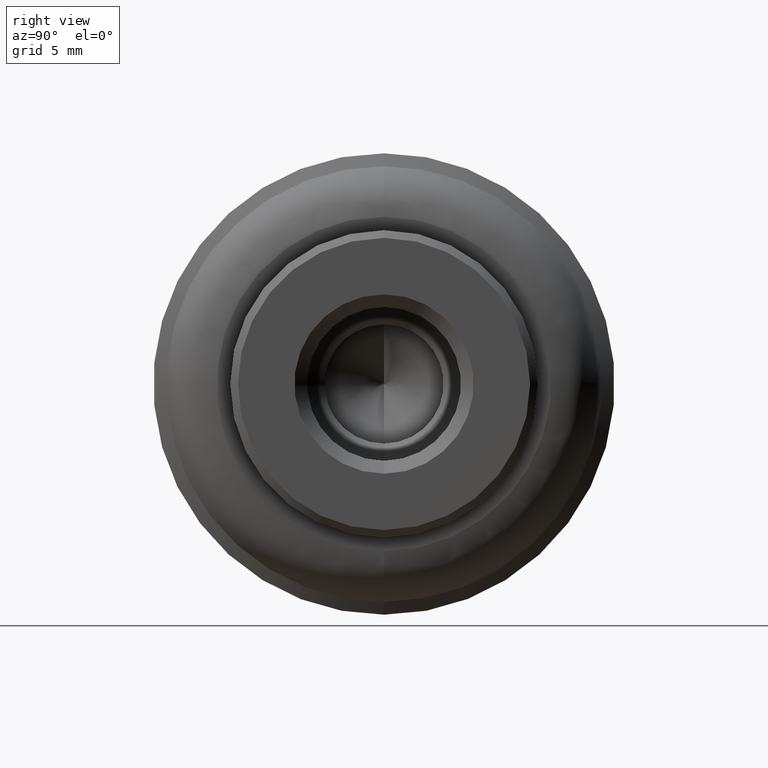
[diagram: clean part render]
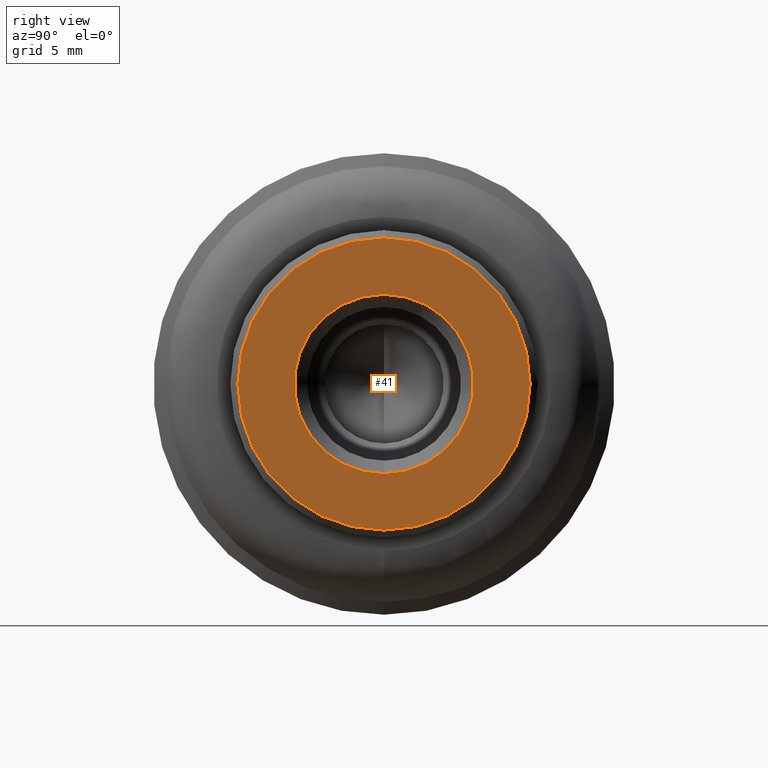
[diagram: same view with one face highlighted and labeled with its STEP entity id]
A machine part, right view. The second image highlights one B-rep face of the part: STEP entity #41.
In plain terms, the highlighted planar face has unit normal (-1, 0, 0).
Its self-contained STEP definition (entity closure, byte-faithful):
#41=ADVANCED_FACE('',(#83,#84),#82,.F.);
#82=PLANE('',#403);
#83=FACE_OUTER_BOUND('',#404,.T.);
#84=FACE_BOUND('',#405,.T.);
#400=CARTESIAN_POINT('',(0.00000000000E+00,-1.18472275238E+01,-1.31100000000E+01));
#401=DIRECTION('',(-1.00000000000E+00,0.00000000000E+00,0.00000000000E+00));
#402=DIRECTION('',(0.00000000000E+00,0.00000000000E+00,1.00000000000E+00));
#403=AXIS2_PLACEMENT_3D('',#400,#401,#402);
#404=EDGE_LOOP('',(#716,#717));
#405=EDGE_LOOP('',(#718,#719));
#716=ORIENTED_EDGE('',*,*,#840,.F.);
#717=ORIENTED_EDGE('',*,*,#841,.F.);
#718=ORIENTED_EDGE('',*,*,#842,.T.);
#719=ORIENTED_EDGE('',*,*,#843,.T.);
#840=EDGE_CURVE('',#914,#915,#916,.T.);
#841=EDGE_CURVE('',#915,#914,#922,.T.);
#842=EDGE_CURVE('',#928,#929,#930,.T.);
#843=EDGE_CURVE('',#929,#928,#936,.T.);
#914=VERTEX_POINT('',#1317);
#915=VERTEX_POINT('',#1318);
#916=CIRCLE('',#1322,5.70000000000E+00);
#922=CIRCLE('',#1326,5.70000000000E+00);
#928=VERTEX_POINT('',#1327);
#929=VERTEX_POINT('',#1328);
#930=CIRCLE('',#1332,3.50000000000E+00);
#936=CIRCLE('',#1336,3.50000000000E+00);
#1317=CARTESIAN_POINT('',(0.00000000000E+00,5.92118946467E-16,-5.70000000000E+00));
#1318=CARTESIAN_POINT('',(0.00000000000E+00,0.00000000000E+00,5.70000000000E+00));
#1319=CARTESIAN_POINT('',(0.00000000000E+00,0.00000000000E+00,0.00000000000E+00));
#1320=DIRECTION('',(-1.00000000000E+00,0.00000000000E+00,0.00000000000E+00));
#1321=DIRECTION('',(0.00000000000E+00,-1.22460635382E-16,1.00000000000E+00));
#1322=AXIS2_PLACEMENT_3D('',#1319,#1320,#1321);
#1323=CARTESIAN_POINT('',(0.00000000000E+00,0.00000000000E+00,0.00000000000E+00));
#1324=DIRECTION('',(-1.00000000000E+00,0.00000000000E+00,0.00000000000E+00));
#1325=DIRECTION('',(0.00000000000E+00,-1.22460635382E-16,1.00000000000E+00));
#1326=AXIS2_PLACEMENT_3D('',#1323,#1324,#1325);
#1327=CARTESIAN_POINT('',(0.00000000000E+00,0.00000000000E+00,3.50000000000E+00));
#1328=CARTESIAN_POINT('',(0.00000000000E+00,1.48029736617E-16,-3.50000000000E+00));
#1329=CARTESIAN_POINT('',(0.00000000000E+00,0.00000000000E+00,0.00000000000E+00));
#1330=DIRECTION('',(-1.00000000000E+00,0.00000000000E+00,0.00000000000E+00));
#1331=DIRECTION('',(0.00000000000E+00,-1.22460635382E-16,1.00000000000E+00));
#1332=AXIS2_PLACEMENT_3D('',#1329,#1330,#1331);
#1333=CARTESIAN_POINT('',(0.00000000000E+00,0.00000000000E+00,0.00000000000E+00));
#1334=DIRECTION('',(-1.00000000000E+00,0.00000000000E+00,0.00000000000E+00));
#1335=DIRECTION('',(0.00000000000E+00,-1.22460635382E-16,1.00000000000E+00));
#1336=AXIS2_PLACEMENT_3D('',#1333,#1334,#1335);